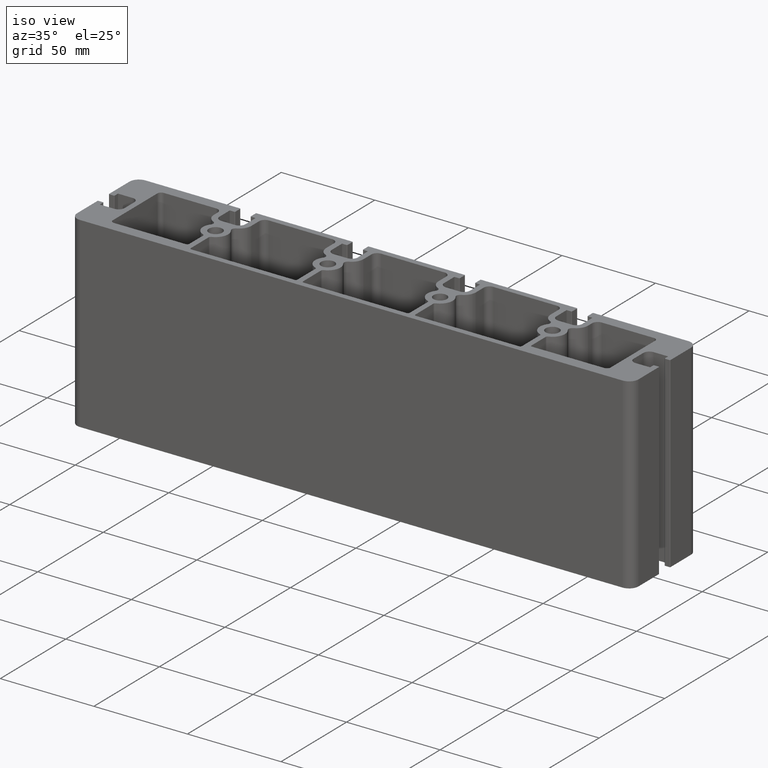
[diagram: clean part render]
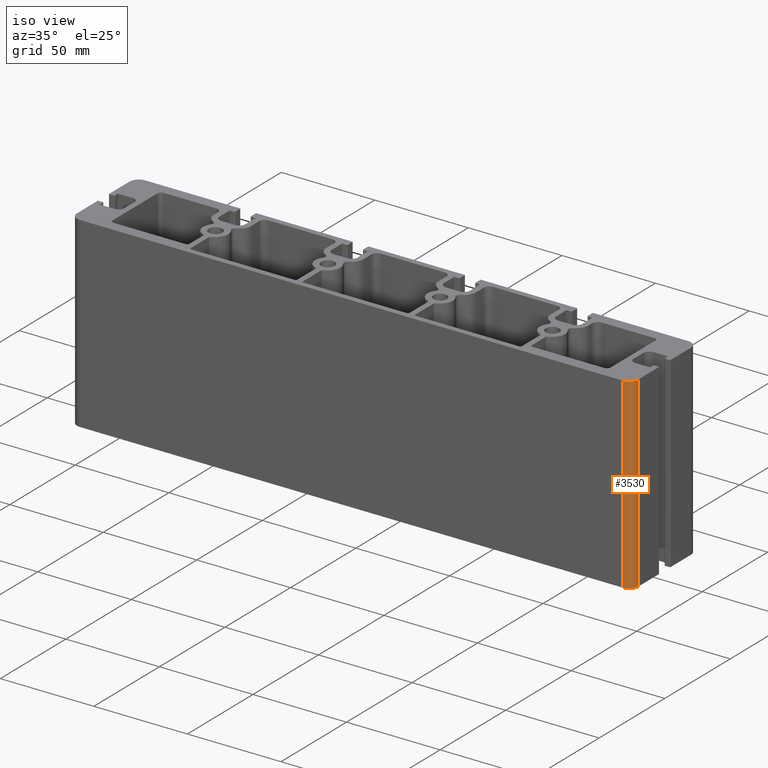
[diagram: same view with one face highlighted and labeled with its STEP entity id]
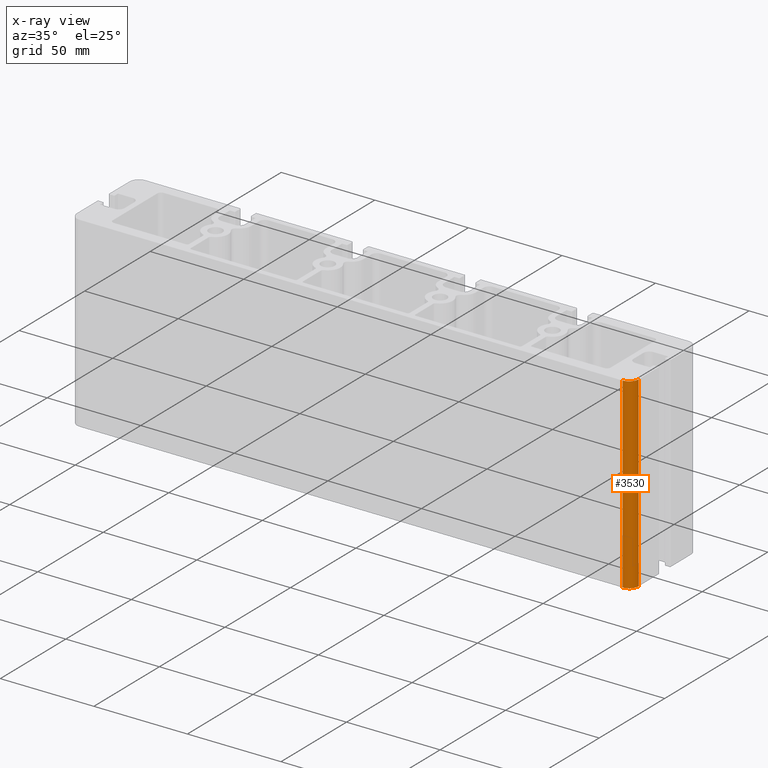
[diagram: x-ray of the same camera — body ghosted, the highlighted face saturated]
A machine part, iso view. The second image highlights one B-rep face of the part: STEP entity #3530.
The next image is the same camera in x-ray: the body ghosted, the highlighted face saturated — about 0% of this face is hidden behind the body in this view.
In plain terms, the highlighted cylindrical surface (edge-blend (fillet) strip) has radius 5 mm, axis along (0, 0, 1).
Its self-contained STEP definition (entity closure, byte-faithful):
#276=FACE_OUTER_BOUND('',#458,.T.);
#458=EDGE_LOOP('',(#2849,#2850,#2851,#2852));
#790=LINE('',#5938,#1122);
#791=LINE('',#5944,#1123);
#1122=VECTOR('',#4880,100.);
#1123=VECTOR('',#4887,100.);
#1335=CIRCLE('',#3885,5.);
#1336=CIRCLE('',#3886,5.);
#1667=VERTEX_POINT('',#5934);
#1668=VERTEX_POINT('',#5936);
#1669=VERTEX_POINT('',#5940);
#1670=VERTEX_POINT('',#5942);
#2172=EDGE_CURVE('',#1667,#1668,#790,.T.);
#2173=EDGE_CURVE('',#1669,#1667,#1335,.T.);
#2174=EDGE_CURVE('',#1670,#1668,#1336,.T.);
#2175=EDGE_CURVE('',#1669,#1670,#791,.T.);
#2849=ORIENTED_EDGE('',*,*,#2173,.T.);
#2850=ORIENTED_EDGE('',*,*,#2172,.T.);
#2851=ORIENTED_EDGE('',*,*,#2174,.F.);
#2852=ORIENTED_EDGE('',*,*,#2175,.F.);
#3364=CYLINDRICAL_SURFACE('',#3884,5.);
#3530=ADVANCED_FACE('',(#276),#3364,.T.);
#3884=AXIS2_PLACEMENT_3D('',#5939,#4881,#4882);
#3885=AXIS2_PLACEMENT_3D('',#5941,#4883,#4884);
#3886=AXIS2_PLACEMENT_3D('',#5943,#4885,#4886);
#4880=DIRECTION('',(0.,0.,1.));
#4881=DIRECTION('center_axis',(0.,0.,1.));
#4882=DIRECTION('ref_axis',(0.,-1.,0.));
#4883=DIRECTION('center_axis',(0.,0.,1.));
#4884=DIRECTION('ref_axis',(0.,-1.,0.));
#4885=DIRECTION('center_axis',(0.,0.,1.));
#4886=DIRECTION('ref_axis',(0.,-1.,0.));
#4887=DIRECTION('',(0.,0.,1.));
#5934=CARTESIAN_POINT('',(180.,-20.0000000000001,0.));
#5936=CARTESIAN_POINT('',(180.,-20.0000000000001,100.));
#5938=CARTESIAN_POINT('',(180.,-20.0000000000001,0.));
#5939=CARTESIAN_POINT('Origin',(175.,-20.,0.));
#5940=CARTESIAN_POINT('',(175.,-24.9999999999999,0.));
#5941=CARTESIAN_POINT('Origin',(175.,-20.,0.));
#5942=CARTESIAN_POINT('',(175.,-24.9999999999999,100.));
#5943=CARTESIAN_POINT('Origin',(175.,-20.,100.));
#5944=CARTESIAN_POINT('',(175.,-24.9999999999999,0.));